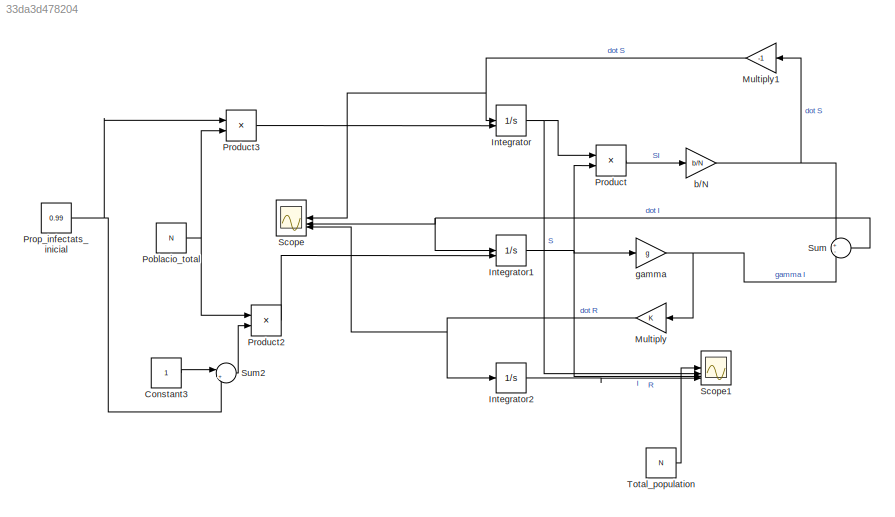
MODEL slx_33da3d478204
KIND model
CONFIG AbsTol = auto
CONFIG EnableMultiTasking = off
CONFIG FixedStep = auto
CONFIG MaxStep = auto
CONFIG MinStep = auto
CONFIG RelTol = 1e-3
CONFIG SampleTimeConstraint = Unconstrained
CONFIG SolverName = VariableStepAuto
CONFIG StartTime = 0.0
CONFIG StopTime = 30
BLOCK [Constant] Constant3
BLOCK [Integrator] Integrator
  InitialCondition = N
  InitialConditionSource = external
BLOCK [Integrator] Integrator1
  InitialConditionSource = external
BLOCK [Integrator] Integrator2
BLOCK [Gain] Multiply
BLOCK [Gain] Multiply1
  Gain = -1
BLOCK [Constant] Poblacio_total
  Value = N
BLOCK [Product] Product
BLOCK [Product] Product2
BLOCK [Product] Product3
BLOCK [Constant] Prop_infectats_inicial
  Value = 0.99
BLOCK [Scope] Scope
  Floating = off
  NumInputPorts = 3
  ScopeSpecificationString = Simulink.scopes.TimeScopeBlockCfg('CurrentConfiguration', extmgr.ConfigurationSet(extmgr.Configuration('Core','General UI',true),extmgr.Configuration('Core','Source UI',true),extmgr.Configuration('Sources','WiredSimulink',true),extmgr.Configuration('Visuals','Time Domain',true,'SerializedDisplays',{struct('MinYLimReal','-2440639.14384','MaxYLimReal','2142647.22617','YLabelReal','','MinYLimMag','  ...<+1414ch>
BLOCK [Scope] Scope1
  Floating = off
  NumInputPorts = 4
  ScopeSpecificationString = Simulink.scopes.TimeScopeBlockCfg('CurrentConfiguration', extmgr.ConfigurationSet(extmgr.Configuration('Core','General UI',true,'FigureColor',[1 1 1]),extmgr.Configuration('Core','Source UI',true),extmgr.Configuration('Sources','WiredSimulink',true,'DataLoggingVariableName','ScopeData1'),extmgr.Configuration('Visuals','Time Domain',true,'PlotType','Line','SerializedDisplays',{struct('MinYLimReal',...<+2021ch>
BLOCK [Sum] Sum
  Inputs = +-
  NameLocation = top
BLOCK [Sum] Sum2
  Inputs = |+-
BLOCK [Constant] Total_population
  Value = N
BLOCK [Gain] b//N
  Gain = b/N
BLOCK [Gain] gamma
  Gain = g
LINE Constant3:1 -> Sum2:1
NET Integrator1:1 -> Product:2, Scope1:3, gamma:1
LINE Integrator2:1 -> Scope1:4
NET Integrator:1 -> Product:1, Scope1:2
NET Multiply1:1 -> Integrator:1, Scope:1
NET Multiply:1 -> Integrator2:1, Scope:3
NET Poblacio_total:1 -> Product2:1, Product3:2
LINE Product2:1 -> Integrator1:2
LINE Product3:1 -> Integrator:2
LINE Product:1 -> b//N:1
NET Prop_infectats_inicial:1 -> Product3:1, Sum2:2
LINE Sum2:1 -> Product2:2
NET Sum:1 -> Integrator1:1, Scope:2
LINE Total_population:1 -> Scope1:1
NET b//N:1 -> Multiply1:1, Sum:1
NET gamma:1 -> Multiply:1, Sum:2
note: NET lines group one-source signal fan-out (src -> all destinations, sorted); 1:1 wires keep LINE
